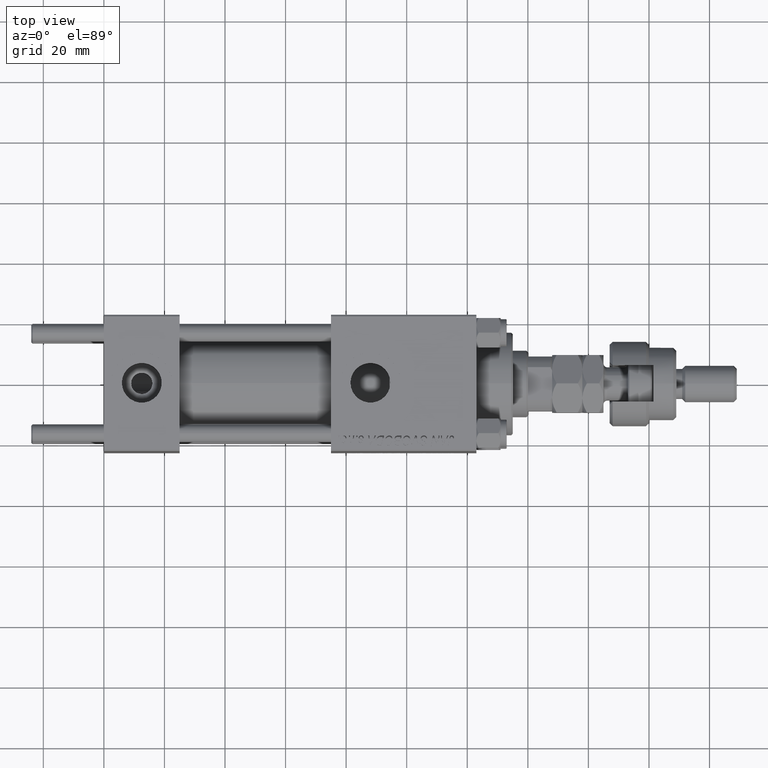
[diagram: clean part render]
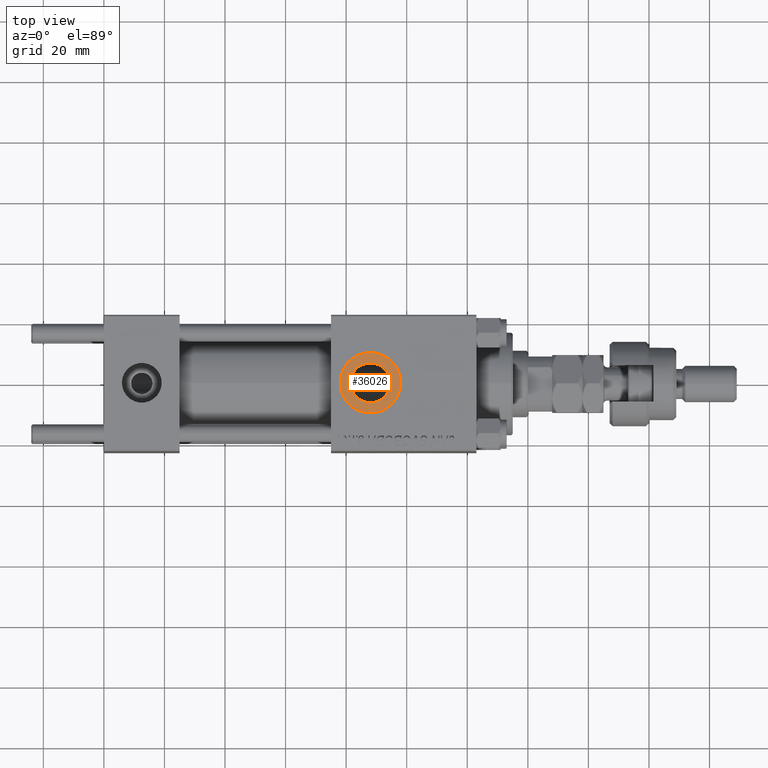
[diagram: same view with one face highlighted and labeled with its STEP entity id]
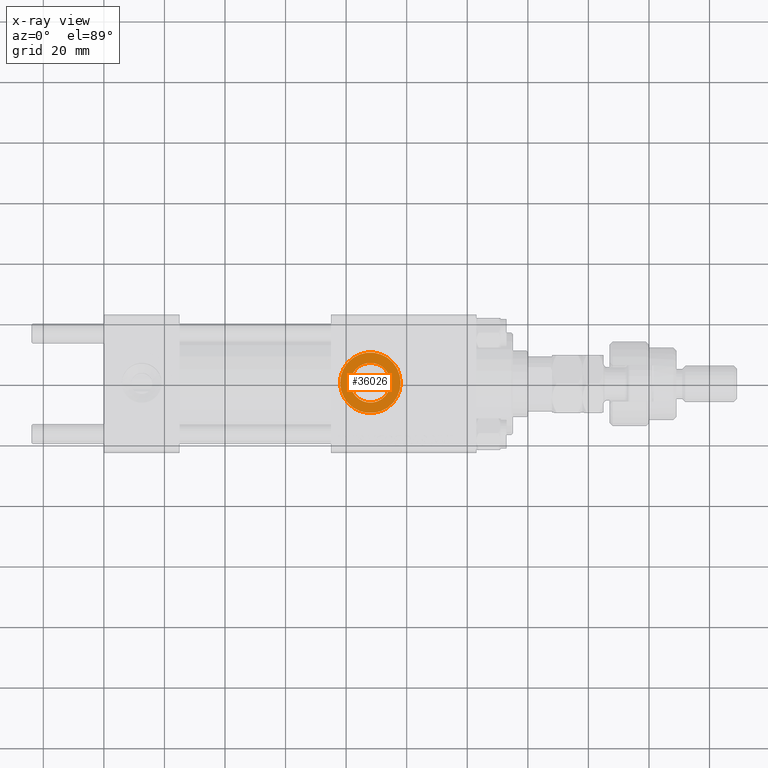
[diagram: x-ray of the same camera — body ghosted, the highlighted face saturated]
A machine part, top view. The second image highlights one B-rep face of the part: STEP entity #36026.
The next image is the same camera in x-ray: the body ghosted, the highlighted face saturated — about 0% of this face is hidden behind the body in this view.
In plain terms, the highlighted planar face has unit normal (0, 0, 1).
Its self-contained STEP definition (entity closure, byte-faithful):
#305 = FACE_OUTER_BOUND ( 'NONE', #30607, .T. ) ;
#3439 = CARTESIAN_POINT ( 'NONE',  ( 78.00000000000000000, -3.979523628783065857E-15, 22.29999999999999716 ) ) ;
#3840 = EDGE_LOOP ( 'NONE', ( #39982, #47855 ) ) ;
#4013 = CARTESIAN_POINT ( 'NONE',  ( 81.42000000000000171, -5.204170427930420494E-15, 22.29999999999999716 ) ) ;
#4138 = AXIS2_PLACEMENT_3D ( 'NONE', #29019, #20777, #52518 ) ;
#4388 = DIRECTION ( 'NONE',  ( 1.000000000000000000, 0.000000000000000000, 0.000000000000000000 ) ) ;
#5422 = AXIS2_PLACEMENT_3D ( 'NONE', #29151, #36356, #4388 ) ;
#8297 = VERTEX_POINT ( 'NONE', #3439 ) ;
#8789 = DIRECTION ( 'NONE',  ( 1.000000000000000000, 0.000000000000000000, -0.000000000000000000 ) ) ;
#9387 = EDGE_CURVE ( 'NONE', #27738, #8297, #13059, .T. ) ;
#10617 = VERTEX_POINT ( 'NONE', #4013 ) ;
#12089 = ORIENTED_EDGE ( 'NONE', *, *, #9387, .T. ) ;
#12269 = CARTESIAN_POINT ( 'NONE',  ( 94.58000000000001251, -4.398352834091461452E-15, 22.29999999999999716 ) ) ;
#13059 = CIRCLE ( 'NONE', #13899, 10.00000000000000888 ) ;
#13899 = AXIS2_PLACEMENT_3D ( 'NONE', #51098, #43613, #19362 ) ;
#14520 = EDGE_CURVE ( 'NONE', #8297, #27738, #44857, .T. ) ;
#15033 = DIRECTION ( 'NONE',  ( 1.000000000000000000, 0.000000000000000000, 0.000000000000000000 ) ) ;
#16539 = PLANE ( 'NONE',  #51663 ) ;
#17119 = ORIENTED_EDGE ( 'NONE', *, *, #14520, .T. ) ;
#17139 = CARTESIAN_POINT ( 'NONE',  ( 98.00000000000001421, -5.204170427930420494E-15, 22.29999999999999716 ) ) ;
#18241 = CARTESIAN_POINT ( 'NONE',  ( 88.00000000000001421, -5.204170427930420494E-15, 22.29999999999999716 ) ) ;
#19362 = DIRECTION ( 'NONE',  ( 1.000000000000000000, 0.000000000000000000, 0.000000000000000000 ) ) ;
#20777 = DIRECTION ( 'NONE',  ( -0.000000000000000000, -0.000000000000000000, -1.000000000000000000 ) ) ;
#22410 = CIRCLE ( 'NONE', #5422, 6.580000000000002736 ) ;
#27738 = VERTEX_POINT ( 'NONE', #17139 ) ;
#29019 = CARTESIAN_POINT ( 'NONE',  ( 88.00000000000001421, -5.204170427930420494E-15, 22.29999999999999716 ) ) ;
#29151 = CARTESIAN_POINT ( 'NONE',  ( 88.00000000000001421, -5.204170427930420494E-15, 22.29999999999999716 ) ) ;
#30607 = EDGE_LOOP ( 'NONE', ( #12089, #17119 ) ) ;
#32776 = CARTESIAN_POINT ( 'NONE',  ( 88.00000000000001421, -5.204170427930420494E-15, 22.29999999999999716 ) ) ;
#36026 = ADVANCED_FACE ( 'NONE', ( #36768, #305 ), #16539, .T. ) ;
#36356 = DIRECTION ( 'NONE',  ( -0.000000000000000000, -0.000000000000000000, -1.000000000000000000 ) ) ;
#36768 = FACE_BOUND ( 'NONE', #3840, .T. ) ;
#38484 = DIRECTION ( 'NONE',  ( 0.000000000000000000, 0.000000000000000000, 1.000000000000000000 ) ) ;
#38926 = EDGE_CURVE ( 'NONE', #39919, #10617, #50080, .T. ) ;
#39919 = VERTEX_POINT ( 'NONE', #12269 ) ;
#39982 = ORIENTED_EDGE ( 'NONE', *, *, #45925, .T. ) ;
#43613 = DIRECTION ( 'NONE',  ( 0.000000000000000000, 0.000000000000000000, 1.000000000000000000 ) ) ;
#44857 = CIRCLE ( 'NONE', #46516, 10.00000000000000888 ) ;
#45925 = EDGE_CURVE ( 'NONE', #10617, #39919, #22410, .T. ) ;
#46516 = AXIS2_PLACEMENT_3D ( 'NONE', #18241, #38484, #15033 ) ;
#47855 = ORIENTED_EDGE ( 'NONE', *, *, #38926, .T. ) ;
#49061 = DIRECTION ( 'NONE',  ( 0.000000000000000000, 0.000000000000000000, 1.000000000000000000 ) ) ;
#50080 = CIRCLE ( 'NONE', #4138, 6.580000000000002736 ) ;
#51098 = CARTESIAN_POINT ( 'NONE',  ( 88.00000000000001421, -5.204170427930420494E-15, 22.29999999999999716 ) ) ;
#51663 = AXIS2_PLACEMENT_3D ( 'NONE', #32776, #49061, #8789 ) ;
#52518 = DIRECTION ( 'NONE',  ( 1.000000000000000000, 0.000000000000000000, 0.000000000000000000 ) ) ;